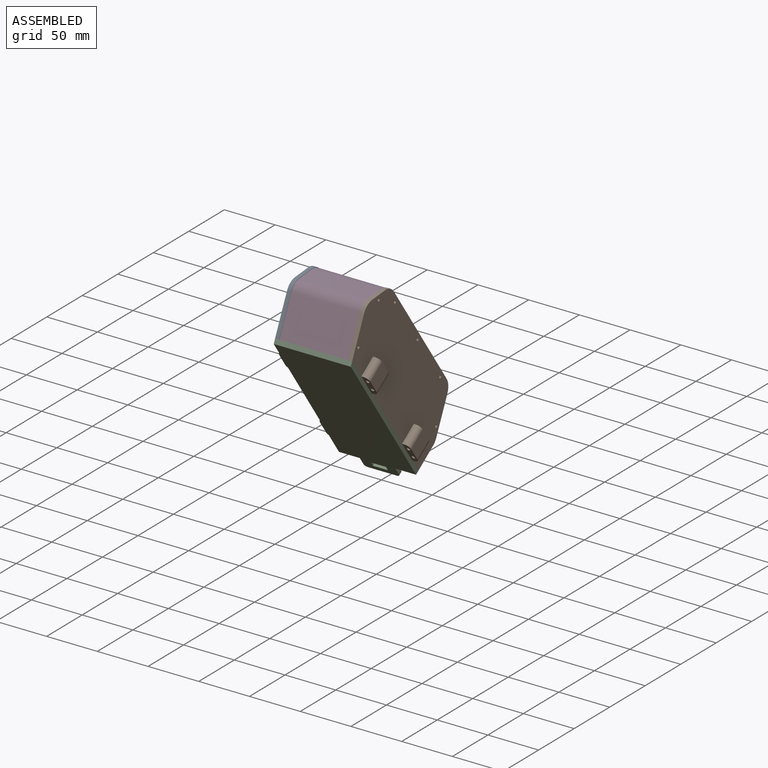
[diagram: assembled view]
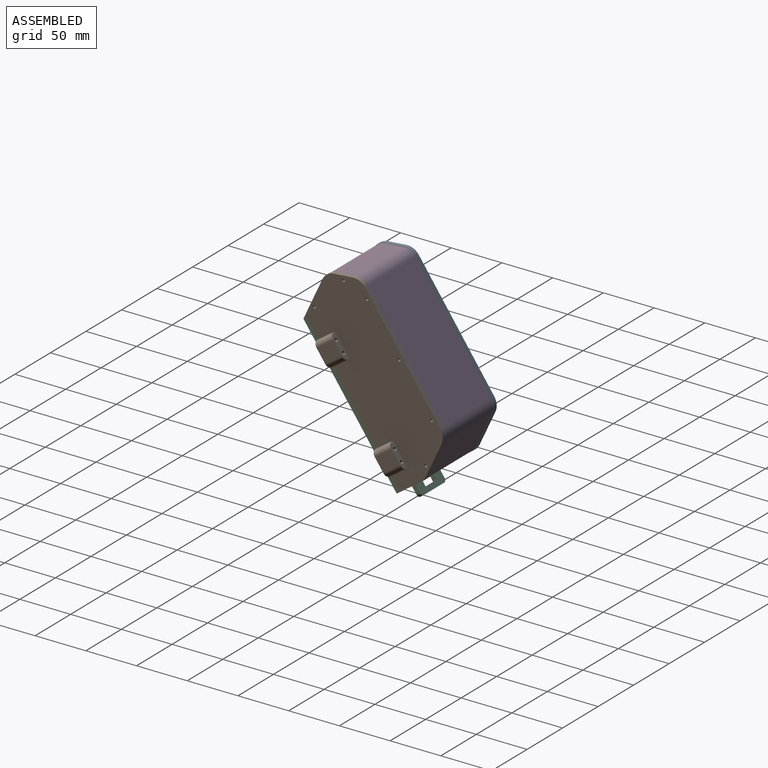
[diagram: assembled view, second angle]
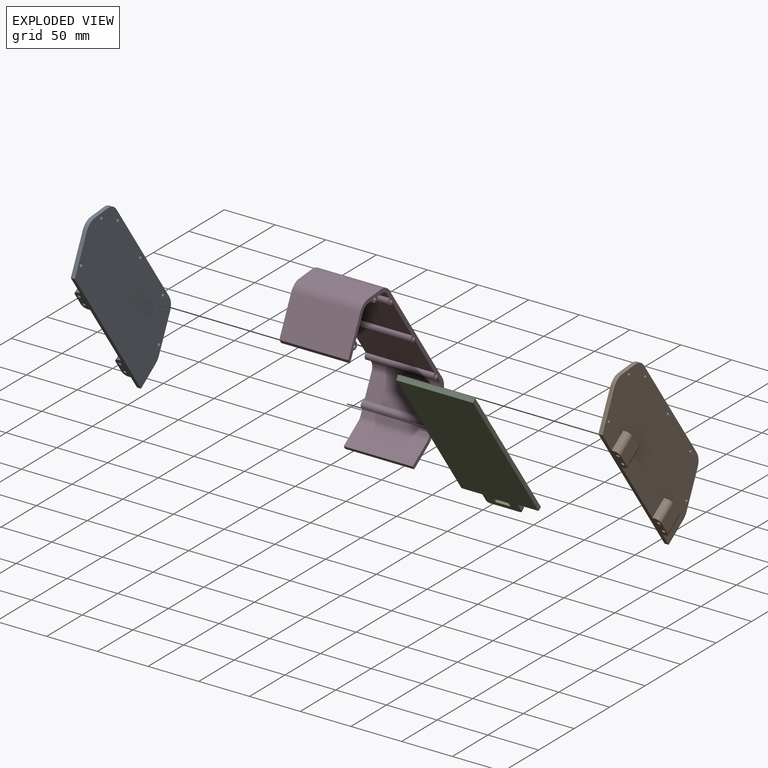
[diagram: exploded view]
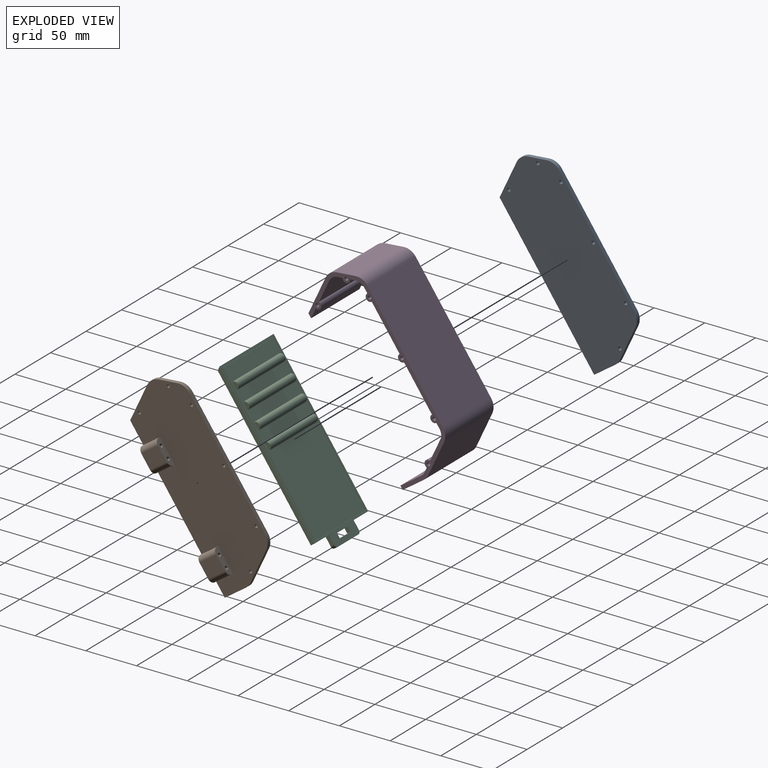
[diagram: exploded view, second angle]
ASSEMBLY  parts=4 mates=2
PART A: 34 faces, bbox 11x135.4x178.8 mm
  f0: plane 178.76x135.38mm, normal (-1,0,0), area 10874.2mm2, adj f1,f2,f3,f4,f5,f6,f7,f8
  f1: plane 133.2x93.27mm, normal (0,-0.82,-0.57), area 950.7mm2, adj f0,f2,f10,f11,f12,f13,f14,f15
  f2: plane 20.7x14.5mm, normal (0,0.57,-0.82), area 101.1mm2, adj f0,f1,f3,f11
  f3: cylinder r=13.55mm len=5.37mm, axis (-1,0,0), area 28.4mm2, adj f0,f2,f4,f11
  f4: plane 33.53x15.64mm, normal (0,0.91,-0.42), area 148mm2, adj f0,f3,f5,f11
  f5: cylinder r=13.55mm len=13.5mm, axis (-1,0,0), area 56.8mm2, adj f0,f4,f6,f11
  f6: plane 106.08x74.28mm, normal (0,0.82,0.57), area 518mm2, adj f0,f5,f7,f11
  f7: cylinder r=13.55mm len=12.28mm, axis (-1,0,0), area 56.8mm2, adj f0,f6,f8,f11
  f8: plane 18.43x4mm, normal (0,-0.09,1), area 74mm2, adj f0,f7,f9,f11
  f9: cylinder r=13.55mm len=11.1mm, axis (-1,0,0), area 56.8mm2, adj f0,f8,f10,f11
  f10: plane 36.12x16.84mm, normal (0,-0.91,0.42), area 159.4mm2, adj f0,f1,f9,f11
  f11: plane 178.76x135.38mm, normal (1,0,0), area 11874.2mm2, adj f1,f2,f3,f4,f5,f6,f7,f8
  f12: plane 16.38x11.47mm, normal (0,0.57,-0.82), area 40mm2, adj f0,f1,f17,f26
  f13: plane 16.38x11.47mm, normal (0,-0.57,0.82), area 40mm2, adj f0,f1,f17,f27
  f14: cylinder r=1.5mm len=18.1mm, axis (0,-0.82,-0.57), area 188.5mm2, adj f1,f17
  f15: plane 24.99x23.76mm, normal (-1,0,0), area 300mm2, adj f1,f17,f26,f27
  f16: cylinder r=1.5mm len=18.1mm, axis (0,-0.82,-0.57), area 188.5mm2, adj f1,f17
  f17: plane 20.48x14.34mm, normal (0,0.82,0.57), area 150.1mm2, adj f0,f12,f13,f14,f15,f16,f26,f27
  f18: plane 16.38x11.47mm, normal (0,-0.57,0.82), area 40mm2, adj f0,f1,f23,f24
  f19: plane 24.99x23.76mm, normal (-1,0,0), area 300mm2, adj f1,f23,f24,f25
  f20: cylinder r=1.5mm len=18.1mm, axis (0,-0.82,-0.57), area 188.5mm2, adj f1,f23
  f21: cylinder r=1.5mm len=18.1mm, axis (0,-0.82,-0.57), area 188.5mm2, adj f1,f23
  f22: plane 16.38x11.47mm, normal (0,0.57,-0.82), area 40mm2, adj f0,f1,f23,f25
  f23: plane 20.48x14.34mm, normal (0,0.82,0.57), area 150.1mm2, adj f0,f18,f19,f20,f21,f22,f24,f25
  f24: cylinder r=5mm len=19.25mm, axis (0,-0.82,-0.57), area 157.1mm2, adj f1,f18,f19,f23
  f25: cylinder r=5mm len=19.25mm, axis (0,0.82,0.57), area 157.1mm2, adj f1,f19,f22,f23
  f26: cylinder r=5mm len=19.25mm, axis (0,0.82,0.57), area 157.1mm2, adj f1,f12,f15,f17
  f27: cylinder r=5mm len=19.25mm, axis (0,-0.82,-0.57), area 157.1mm2, adj f1,f13,f15,f17
  f28: cylinder r=1.7mm len=4mm, axis (-1,0,0), area 42.7mm2, adj f0,f11
  f29: cylinder r=1.7mm len=4mm, axis (-1,0,0), area 42.7mm2, adj f0,f11
  f30: cylinder r=1.7mm len=4mm, axis (-1,0,0), area 42.7mm2, adj f0,f11
  f31: cylinder r=1.7mm len=4mm, axis (-1,0,0), area 42.7mm2, adj f0,f11
  f32: cylinder r=1.7mm len=4mm, axis (-1,0,0), area 42.7mm2, adj f0,f11
  f33: cylinder r=1.7mm len=4mm, axis (-1,0,0), area 42.7mm2, adj f0,f11
PART B: 34 faces, bbox 11x135.4x178.8 mm
  f0: plane 133.2x93.27mm, normal (0,-0.82,-0.57), area 942.6mm2, adj f1,f9,f10,f11,f12,f13,f14,f15
  f1: plane 20.7x14.5mm, normal (0,0.57,-0.82), area 101.1mm2, adj f0,f2,f10,f11
  f2: cylinder r=13.55mm len=5.37mm, axis (-1,0,0), area 28.4mm2, adj f1,f3,f10,f11
  f3: plane 33.53x15.64mm, normal (0,0.91,-0.42), area 148mm2, adj f2,f4,f10,f11
  f4: cylinder r=13.55mm len=13.5mm, axis (-1,0,0), area 56.8mm2, adj f3,f5,f10,f11
  f5: plane 106.08x74.28mm, normal (0,0.82,0.57), area 518mm2, adj f4,f6,f10,f11
  f6: cylinder r=13.55mm len=12.28mm, axis (-1,0,0), area 56.8mm2, adj f5,f7,f10,f11
  f7: plane 18.43x4mm, normal (0,-0.09,1), area 74mm2, adj f6,f8,f10,f11
  f8: cylinder r=13.55mm len=11.1mm, axis (-1,0,0), area 56.8mm2, adj f7,f9,f10,f11
  f9: plane 36.12x16.84mm, normal (0,-0.91,0.42), area 159.4mm2, adj f0,f8,f10,f11
  f10: plane 178.76x135.38mm, normal (1,0,0), area 10886.3mm2, adj f0,f1,f2,f3,f4,f5,f6,f7
  f11: plane 178.76x135.38mm, normal (-1,0,0), area 11886.3mm2, adj f0,f1,f2,f3,f4,f5,f6,f7
  f12: plane 16.38x11.47mm, normal (0,-0.57,0.82), area 40mm2, adj f0,f10,f17,f26
  f13: plane 16.38x11.47mm, normal (0,0.57,-0.82), area 40mm2, adj f0,f10,f17,f27
  f14: cylinder r=1.7mm len=18.33mm, axis (0,-0.82,-0.57), area 213.6mm2, adj f0,f17
  f15: plane 24.99x23.76mm, normal (1,0,0), area 300mm2, adj f0,f17,f26,f27
  f16: cylinder r=1.7mm len=18.33mm, axis (0,-0.82,-0.57), area 213.6mm2, adj f0,f17
  f17: plane 20.48x14.34mm, normal (0,0.82,0.57), area 146.1mm2, adj f10,f12,f13,f14,f15,f16,f26,f27
  f18: plane 16.38x11.47mm, normal (0,-0.57,0.82), area 40mm2, adj f0,f10,f23,f25
  f19: plane 16.38x11.47mm, normal (0,0.57,-0.82), area 40mm2, adj f0,f10,f23,f24
  f20: cylinder r=1.7mm len=18.33mm, axis (0,-0.82,-0.57), area 213.6mm2, adj f0,f23
  f21: plane 24.99x23.76mm, normal (1,0,0), area 300mm2, adj f0,f23,f24,f25
  f22: cylinder r=1.7mm len=18.33mm, axis (0,-0.82,-0.57), area 213.6mm2, adj f0,f23
  f23: plane 20.48x14.34mm, normal (0,0.82,0.57), area 146.1mm2, adj f10,f18,f19,f20,f21,f22,f24,f25
  f24: cylinder r=5mm len=19.25mm, axis (0,0.82,0.57), area 157.1mm2, adj f0,f19,f21,f23
  f25: cylinder r=5mm len=19.25mm, axis (0,-0.82,-0.57), area 157.1mm2, adj f0,f18,f21,f23
  f26: cylinder r=5mm len=19.25mm, axis (0,-0.82,-0.57), area 157.1mm2, adj f0,f12,f15,f17
  f27: cylinder r=5mm len=19.25mm, axis (0,0.82,0.57), area 157.1mm2, adj f0,f13,f15,f17
  f28: cylinder r=1.5mm len=4mm, axis (1,0,0), area 37.7mm2, adj f10,f11
  f29: cylinder r=1.5mm len=4mm, axis (1,0,0), area 37.7mm2, adj f10,f11
  f30: cylinder r=1.5mm len=4mm, axis (1,0,0), area 37.7mm2, adj f10,f11
  f31: cylinder r=1.5mm len=4mm, axis (1,0,0), area 37.7mm2, adj f10,f11
  f32: cylinder r=1.5mm len=4mm, axis (1,0,0), area 37.7mm2, adj f10,f11
  f33: cylinder r=1.5mm len=4mm, axis (1,0,0), area 37.7mm2, adj f10,f11
PART C: 38 faces, bbox 76x102.1x145.3 mm
  f0: plane 141.08x98.79mm, normal (0,-0.82,-0.57), area 12518.4mm2, adj f2,f3,f4,f5,f6,f29,f30,f31
  f1: plane 142.97x100.11mm, normal (0,0.82,0.57), area 1047.7mm2, adj f2,f3,f4,f5,f6,f7,f8,f9
  f2: plane 20.5x3.28mm, normal (0,0.57,-0.82), area 82mm2, adj f0,f1,f5,f30
  f3: plane 76x4.19mm, normal (0,-0.91,0.42), area 351mm2, adj f0,f1,f5,f6
  f4: plane 20.5x3.28mm, normal (0,0.57,-0.82), area 82mm2, adj f0,f1,f6,f31
  f5: plane 135.44x95.18mm, normal (1,0,0), area 645.5mm2, adj f0,f1,f2,f3
  f6: plane 135.44x95.18mm, normal (-1,0,0), area 645.5mm2, adj f0,f1,f3,f4
  f7: plane 131.26x92.33mm, normal (-1,0,0), area 159.5mm2, adj f1,f8,f14,f15
  f8: plane 73x0.82mm, normal (0,-0.57,0.82), area 73mm2, adj f1,f7,f9,f15
  f9: plane 131.26x92.33mm, normal (1,0,0), area 159.5mm2, adj f1,f8,f14,f15
  f10: plane 71x0.82mm, normal (0,-0.57,0.82), area 71mm2, adj f11,f13,f15,f28
  f11: plane 129.62x91.18mm, normal (-1,0,0), area 157.5mm2, adj f10,f12,f15,f28
  f12: plane 71x0.82mm, normal (0,0.57,-0.82), area 71mm2, adj f11,f13,f15,f28
  f13: plane 129.62x91.18mm, normal (1,0,0), area 157.5mm2, adj f10,f12,f15,f28
  f14: plane 73x0.82mm, normal (0,0.57,-0.82), area 73mm2, adj f1,f7,f9,f15
  f15: plane 130.68x91.51mm, normal (0,0.82,0.57), area 461.1mm2, adj f7,f8,f9,f10,f11,f12,f13,f14
  f16: plane 6.97x6.03mm, normal (-1,0,0), area 23.1mm2, adj f17,f28
  f17: cylinder r=3.83mm len=66mm, axis (-1,0,0), area 794.4mm2, adj f16,f18,f28
  f18: plane 6.97x6.03mm, normal (1,0,0), area 23.1mm2, adj f17,f28
  f19: plane 6.97x6.03mm, normal (-1,0,0), area 23.1mm2, adj f20,f28
  f20: cylinder r=3.83mm len=66mm, axis (-1,0,0), area 794.4mm2, adj f19,f21,f28
  f21: plane 6.97x6.03mm, normal (1,0,0), area 23.1mm2, adj f20,f28
  f22: plane 6.97x6.03mm, normal (-1,0,0), area 23.1mm2, adj f23,f28
  f23: cylinder r=3.83mm len=66mm, axis (-1,0,0), area 794.4mm2, adj f22,f24,f28
  f24: plane 6.97x6.03mm, normal (1,0,0), area 23.1mm2, adj f23,f28
  f25: plane 6.97x6.03mm, normal (-1,0,0), area 23.1mm2, adj f26,f28
  f26: cylinder r=3.83mm len=66mm, axis (-1,0,0), area 794.4mm2, adj f25,f27,f28
  f27: plane 6.97x6.03mm, normal (1,0,0), area 23.1mm2, adj f26,f28
  f28: plane 129.05x90.36mm, normal (0,0.82,0.57), area 9162.1mm2, adj f10,f11,f12,f13,f16,f17,f18,f19
  f29: plane 29x3.28mm, normal (0,0.57,-0.82), area 116mm2, adj f0,f1,f36,f37
  f30: plane 9.67x8.44mm, normal (1,0,0), area 36mm2, adj f0,f1,f2,f37
  f31: plane 9.67x8.44mm, normal (-1,0,0), area 36mm2, adj f0,f1,f4,f36
  f32: plane 6.39x6.14mm, normal (1,0,0), area 20mm2, adj f0,f1,f33,f35
  f33: plane 15x3.28mm, normal (0,0.57,-0.82), area 60mm2, adj f0,f1,f32,f34
  f34: plane 6.39x6.14mm, normal (-1,0,0), area 20mm2, adj f0,f1,f33,f35
  f35: plane 15x3.28mm, normal (0,-0.57,0.82), area 60mm2, adj f0,f1,f32,f34
  f36: cylinder r=3mm len=5mm, axis (0,0.82,0.57), area 18.8mm2, adj f0,f1,f29,f31
  f37: cylinder r=3mm len=5mm, axis (0,-0.82,-0.57), area 18.8mm2, adj f0,f1,f29,f30
PART D: 40 faces, bbox 68x134.9x178.2 mm
  f0: cylinder r=3.83mm len=68mm, axis (-1,0,0), area 818.5mm2, adj f1,f37,f38,f39
  f1: plane 68x39.19mm, normal (0,-0.82,-0.57), area 3252.9mm2, adj f0,f2,f38,f39
  f2: cylinder r=3.83mm len=68mm, axis (-1,0,0), area 818.5mm2, adj f1,f3,f38,f39
  f3: plane 68x39.19mm, normal (0,-0.82,-0.57), area 3252.9mm2, adj f2,f4,f38,f39
  f4: cylinder r=3.83mm len=68mm, axis (-1,0,0), area 818.5mm2, adj f3,f5,f38,f39
  f5: plane 68x4.44mm, normal (0,-0.82,-0.57), area 368.5mm2, adj f4,f6,f38,f39
  f6: cylinder r=9.25mm len=68mm, axis (-1,0,0), area 658.7mm2, adj f5,f7,f38,f39
  f7: plane 68x21.68mm, normal (0,-0.91,0.42), area 1626.5mm2, adj f6,f8,f38,f39
  f8: cylinder r=3.83mm len=68mm, axis (-1,0,0), area 818.5mm2, adj f7,f9,f38,f39
  f9: plane 68x4.91mm, normal (0,-0.91,0.42), area 368.5mm2, adj f8,f10,f38,f39
  f10: cylinder r=9.25mm len=68mm, axis (-1,0,0), area 329.3mm2, adj f9,f11,f38,f39
  f11: plane 68x20.7mm, normal (0,-0.57,0.82), area 1718.5mm2, adj f10,f12,f38,f39
  f12: plane 68x3.28mm, normal (0,-0.82,-0.57), area 272mm2, adj f11,f13,f38,f39
  f13: plane 68x20.7mm, normal (0,0.57,-0.82), area 1718.5mm2, adj f12,f14,f38,f39
  f14: cylinder r=13.25mm len=68mm, axis (-1,0,0), area 471.8mm2, adj f13,f15,f38,f39
  f15: plane 68x33.53mm, normal (0,0.91,-0.42), area 2516mm2, adj f14,f16,f38,f39
  f16: cylinder r=13.25mm len=68mm, axis (-1,0,0), area 943.5mm2, adj f15,f17,f38,f39
  f17: plane 106.08x74.28mm, normal (0,0.82,0.57), area 8806mm2, adj f16,f18,f38,f39
  f18: cylinder r=13.25mm len=68mm, axis (-1,0,0), area 943.5mm2, adj f17,f19,f38,f39
  f19: plane 68x18.43mm, normal (0,-0.09,1), area 1258mm2, adj f18,f20,f38,f39
  f20: cylinder r=13.25mm len=68mm, axis (-1,0,0), area 943.5mm2, adj f19,f21,f38,f39
  f21: plane 68x36.28mm, normal (0,-0.91,0.42), area 2722.1mm2, adj f20,f22,f38,f39
  f22: plane 68x3.78mm, normal (0,-0.82,-0.57), area 314.1mm2, adj f21,f23,f38,f39
  f23: plane 68x9.75mm, normal (0,0.91,-0.42), area 731.6mm2, adj f22,f24,f38,f39
  f24: cylinder r=3.83mm len=68mm, axis (-1,0,0), area 818.5mm2, adj f23,f25,f38,f39
  f25: plane 68x21.68mm, normal (0,0.91,-0.42), area 1626.5mm2, adj f24,f26,f38,f39
  f26: cylinder r=9.25mm len=68mm, axis (-1,0,0), area 658.7mm2, adj f25,f27,f38,f39
  f27: plane 68x5.4mm, normal (0,0.09,-1), area 368.5mm2, adj f26,f28,f38,f39
  f28: cylinder r=3.83mm len=68mm, axis (-1,0,0), area 818.5mm2, adj f27,f29,f38,f39
  f29: plane 68x5.4mm, normal (0,0.09,-1), area 368.5mm2, adj f28,f30,f38,f39
  f30: cylinder r=9.25mm len=68mm, axis (-1,0,0), area 658.7mm2, adj f29,f37,f38,f39
  f31: cylinder r=1.75mm len=68mm, axis (-1,0,0), area 747.7mm2, adj f38,f39
  f32: cylinder r=1.75mm len=68mm, axis (-1,0,0), area 747.7mm2, adj f38,f39
  f33: cylinder r=1.75mm len=68mm, axis (-1,0,0), area 747.7mm2, adj f38,f39
  f34: cylinder r=1.75mm len=68mm, axis (-1,0,0), area 747.7mm2, adj f38,f39
  f35: cylinder r=1.75mm len=68mm, axis (-1,0,0), area 747.7mm2, adj f38,f39
  f36: cylinder r=1.75mm len=68mm, axis (-1,0,0), area 747.7mm2, adj f38,f39
  f37: plane 68x4.44mm, normal (0,-0.82,-0.57), area 368.5mm2, adj f0,f30,f38,f39
  f38: plane 178.21x134.88mm, normal (1,0,0), area 1251.4mm2, adj f0,f1,f2,f3,f4,f5,f6,f7
  f39: plane 178.21x134.88mm, normal (-1,0,0), area 1251.4mm2, adj f0,f1,f2,f3,f4,f5,f6,f7
PLACE A t=(-40,3.92,3.11)mm
PLACE B t=(32,3.92,3.11)mm
PLACE C t=(-4,4.1,2.87)mm fixed
PLACE D t=(-4,3.92,3.11)mm
MATE fastened A.f32 <-> D.f4  axis (-1,0,0) through (-38,34.36,75.7)mm
MATE fastened D.f4 <-> B.f29  axis (1,0,0) through (30,34.36,75.7)mm
